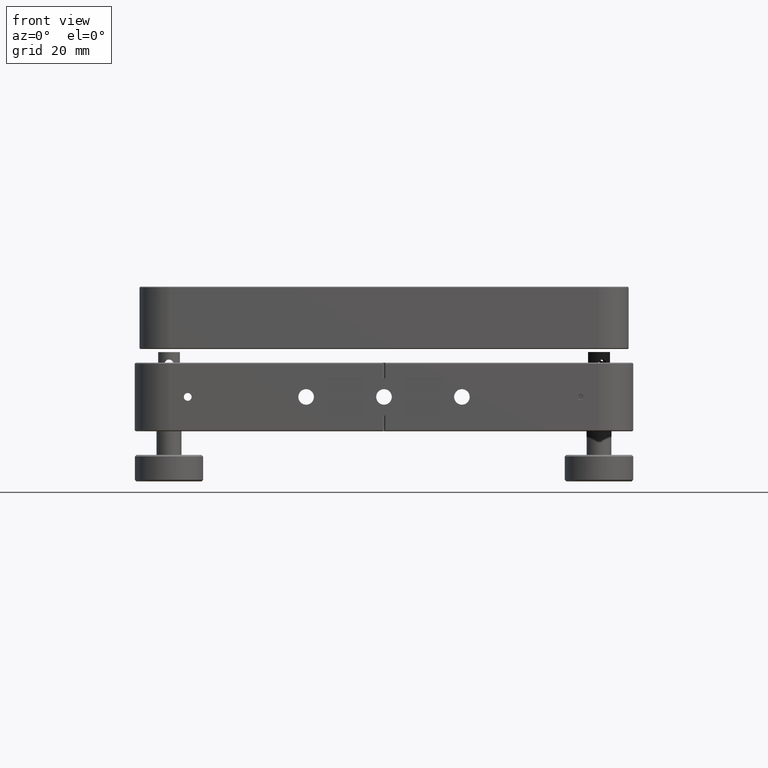
[diagram: clean part render]
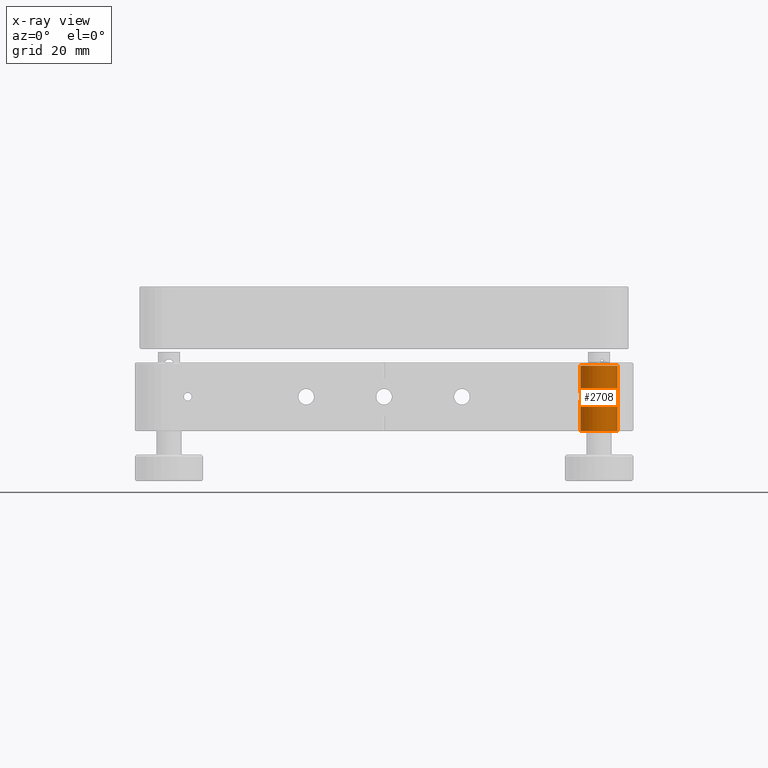
[diagram: x-ray — body ghosted, one internal face saturated and labeled with its STEP entity id]
A machine part, front view, then the same camera in x-ray: the body is ghosted and one INTERNAL B-rep face — a face not visible from any outside direction — is saturated and labeled: STEP entity #2708.
In plain terms, the highlighted cylindrical surface (edge-blend (fillet) strip) has radius 6 mm, axis along (-0, -0, 1).
Its self-contained STEP definition (entity closure, byte-faithful):
#301 = ORIENTED_EDGE ( 'NONE', *, *, #6576, .T. ) ;
#321 = CIRCLE ( 'NONE', #3181, 6.000000000000005329 ) ;
#382 = CARTESIAN_POINT ( 'NONE',  ( 69.00000000000002842, -69.00000000000002842, -11.00000000000000000 ) ) ;
#394 = AXIS2_PLACEMENT_3D ( 'NONE', #382, #16751, #4492 ) ;
#459 = CYLINDRICAL_SURFACE ( 'NONE', #1382, 6.000000000000005329 ) ;
#725 = LINE ( 'NONE', #7616, #9263 ) ;
#1002 = VERTEX_POINT ( 'NONE', #10315 ) ;
#1071 = CARTESIAN_POINT ( 'NONE',  ( 63.00000000000002842, -69.00000000000002842, 9.999999999999998224 ) ) ;
#1157 = CARTESIAN_POINT ( 'NONE',  ( 63.13843892088689813, -70.29482699041338378, -1.242790363445703372 ) ) ;
#1248 = CARTESIAN_POINT ( 'NONE',  ( 63.18133658306691558, -70.47580350192779974, -1.237886824584640832 ) ) ;
#1382 = AXIS2_PLACEMENT_3D ( 'NONE', #3142, #12365, #12542 ) ;
#1414 = CARTESIAN_POINT ( 'NONE',  ( 64.24968844366240717, -72.66531586181879732, 0.09801379278043384491 ) ) ;
#1463 = CARTESIAN_POINT ( 'NONE',  ( 69.00000000000002842, -69.00000000000002842, 9.999999999999998224 ) ) ;
#1501 = EDGE_CURVE ( 'NONE', #13448, #17362, #725, .T. ) ;
#1890 = VERTEX_POINT ( 'NONE', #14366 ) ;
#2052 = DIRECTION ( 'NONE',  ( -0.000000000000000000, -0.000000000000000000, 1.000000000000000000 ) ) ;
#2081 = ORIENTED_EDGE ( 'NONE', *, *, #17210, .F. ) ;
#2420 = LINE ( 'NONE', #6459, #16913 ) ;
#2499 = CARTESIAN_POINT ( 'NONE',  ( 64.25029838675787630, -72.66610622245735840, -0.08989913163700379017 ) ) ;
#2676 = CARTESIAN_POINT ( 'NONE',  ( 63.00000000000002842, -69.00000000000004263, -1.249999999999994671 ) ) ;
#2708 = ADVANCED_FACE ( 'NONE', ( #9859 ), #459, .F. ) ;
#2763 = CARTESIAN_POINT ( 'NONE',  ( 63.55702805116139587, -71.53122345339714627, -1.123044878255709644 ) ) ;
#3142 = CARTESIAN_POINT ( 'NONE',  ( 69.00000000000002842, -69.00000000000002842, -11.00000000000000000 ) ) ;
#3181 = AXIS2_PLACEMENT_3D ( 'NONE', #1463, #6938, #16319 ) ;
#3586 = B_SPLINE_CURVE_WITH_KNOTS ( 'NONE', 3,
 ( #2676, #5545, #8151, #1157, #1248, #17438, #6722, #9477, #2763, #13336, #14845, #5190, #9572, #15021, #14930, #3932, #8227, #13670, #2499, #1414, #10918, #17533, #16100, #3853, #10658, #12253, #13592, #9387, #7971, #6887, #16270, #4016, #12338, #9304, #14761, #5286 ),
 .UNSPECIFIED., .F., .F.,
 ( 4, 2, 2, 2, 2, 2, 2, 2, 2, 2, 2, 2, 2, 2, 2, 2, 2, 4 ),
 ( 1.387948177032400748E-17, 0.001113954897904552693, 0.001670932346856797814, 0.002227909795809042935, 0.002784887244761288273, 0.003341864693713533611, 0.003620353418189664954, 0.003898842142665796730, 0.004177330867141928507, 0.004455819591618060717, 0.004734308316094192060, 0.005012797040570323402, 0.005291285765046455612, 0.005569774489522586955, 0.006126751938474868722, 0.006683729387427152224, 0.007797684285331702748, 0.008911639183236253273 ),
 .UNSPECIFIED. ) ;
#3722 = ORIENTED_EDGE ( 'NONE', *, *, #17330, .T. ) ;
#3853 = CARTESIAN_POINT ( 'NONE',  ( 64.09997800398986101, -72.46311795141356527, 0.5992766933433351095 ) ) ;
#3932 = CARTESIAN_POINT ( 'NONE',  ( 64.17094071428422808, -72.56139281333047109, -0.4450038959629270541 ) ) ;
#4016 = CARTESIAN_POINT ( 'NONE',  ( 63.27607548237955370, -70.83716646185148136, 1.227541699854906243 ) ) ;
#4492 = DIRECTION ( 'NONE',  ( 1.000000000000000000, 0.000000000000000000, 0.000000000000000000 ) ) ;
#5190 = CARTESIAN_POINT ( 'NONE',  ( 63.93834132448147756, -72.22282159784725764, -0.8282246022389999629 ) ) ;
#5286 = CARTESIAN_POINT ( 'NONE',  ( 63.00000000000002842, -69.00000000000002842, 1.249999999999994005 ) ) ;
#5545 = CARTESIAN_POINT ( 'NONE',  ( 63.00000000000001421, -69.37668656156039049, -1.249999999999994227 ) ) ;
#5840 = EDGE_LOOP ( 'NONE', ( #11825, #301, #3722, #12838, #14024, #2081 ) ) ;
#6048 = EDGE_CURVE ( 'NONE', #6253, #17362, #321, .T. ) ;
#6253 = VERTEX_POINT ( 'NONE', #14444 ) ;
#6459 = CARTESIAN_POINT ( 'NONE',  ( 75.00000000000004263, -69.00000000000002842, -11.00000000000000000 ) ) ;
#6576 = EDGE_CURVE ( 'NONE', #1890, #11663, #11993, .T. ) ;
#6722 = CARTESIAN_POINT ( 'NONE',  ( 63.34481341808495358, -71.01338237752986515, -1.203661452424305001 ) ) ;
#6887 = CARTESIAN_POINT ( 'NONE',  ( 63.55501766432815458, -71.52680410238238551, 1.123955487168872169 ) ) ;
#6938 = DIRECTION ( 'NONE',  ( -0.000000000000000000, -0.000000000000000000, -1.000000000000000000 ) ) ;
#7205 = VECTOR ( 'NONE', #12173, 1000.000000000000000 ) ;
#7616 = CARTESIAN_POINT ( 'NONE',  ( 63.00000000000002842, -69.00000000000002842, -11.00000000000000000 ) ) ;
#7971 = CARTESIAN_POINT ( 'NONE',  ( 63.71673344335479783, -71.84950278101797494, 1.028403479199701431 ) ) ;
#8151 = CARTESIAN_POINT ( 'NONE',  ( 63.03516917574226852, -69.74745843703317405, -1.251413607979768416 ) ) ;
#8227 = CARTESIAN_POINT ( 'NONE',  ( 64.19995544426936362, -72.60008940092791363, -0.3616466798126025672 ) ) ;
#8406 = CIRCLE ( 'NONE', #394, 6.000000000000005329 ) ;
#9263 = VECTOR ( 'NONE', #2052, 1000.000000000000000 ) ;
#9304 = CARTESIAN_POINT ( 'NONE',  ( 63.03506567787790971, -69.74735409764267047, 1.251436005054977318 ) ) ;
#9387 = CARTESIAN_POINT ( 'NONE',  ( 63.80450093346957630, -72.00570169348547722, 0.9646985452863768851 ) ) ;
#9477 = CARTESIAN_POINT ( 'NONE',  ( 63.48090494314183019, -71.36102385159141193, -1.156039627783314261 ) ) ;
#9572 = CARTESIAN_POINT ( 'NONE',  ( 63.98151232234710051, -72.28941037990463769, -0.7773441658092772322 ) ) ;
#9859 = FACE_OUTER_BOUND ( 'NONE', #5840, .T. ) ;
#10145 = CARTESIAN_POINT ( 'NONE',  ( 63.00000000000002842, -69.00000000000004263, -1.249999999999994671 ) ) ;
#10315 = CARTESIAN_POINT ( 'NONE',  ( 75.00000000000004263, -69.00000000000002842, -11.00000000000000000 ) ) ;
#10658 = CARTESIAN_POINT ( 'NONE',  ( 64.06044203493347311, -72.40679597129785350, 0.6656232057040227801 ) ) ;
#10918 = CARTESIAN_POINT ( 'NONE',  ( 64.23831486880146713, -72.65068295092711992, 0.1929796114304661581 ) ) ;
#11663 = VERTEX_POINT ( 'NONE', #10145 ) ;
#11825 = ORIENTED_EDGE ( 'NONE', *, *, #16742, .F. ) ;
#11902 = CARTESIAN_POINT ( 'NONE',  ( 63.00000000000002842, -69.00000000000002842, 1.249999999999994005 ) ) ;
#11993 = LINE ( 'NONE', #12079, #7205 ) ;
#12079 = CARTESIAN_POINT ( 'NONE',  ( 63.00000000000002842, -69.00000000000002842, -11.00000000000000000 ) ) ;
#12173 = DIRECTION ( 'NONE',  ( -0.000000000000000000, -0.000000000000000000, 1.000000000000000000 ) ) ;
#12253 = CARTESIAN_POINT ( 'NONE',  ( 63.97780713787694395, -72.28375859891430366, 0.7819749117090986079 ) ) ;
#12338 = CARTESIAN_POINT ( 'NONE',  ( 63.17345832695825436, -70.47999721175465027, 1.239852364324820932 ) ) ;
#12365 = DIRECTION ( 'NONE',  ( -0.000000000000000000, -0.000000000000000000, 1.000000000000000000 ) ) ;
#12542 = DIRECTION ( 'NONE',  ( 1.000000000000000000, 0.000000000000000000, 0.000000000000000000 ) ) ;
#12838 = ORIENTED_EDGE ( 'NONE', *, *, #1501, .T. ) ;
#13336 = CARTESIAN_POINT ( 'NONE',  ( 63.72022422600584690, -71.85604684541694098, -1.026054147027023244 ) ) ;
#13448 = VERTEX_POINT ( 'NONE', #11902 ) ;
#13592 = CARTESIAN_POINT ( 'NONE',  ( 63.93484836030270912, -72.21731288065161891, 0.8321056435616549507 ) ) ;
#13670 = CARTESIAN_POINT ( 'NONE',  ( 64.23952023704350722, -72.65224641257326255, -0.1851242048214310210 ) ) ;
#14024 = ORIENTED_EDGE ( 'NONE', *, *, #6048, .F. ) ;
#14366 = CARTESIAN_POINT ( 'NONE',  ( 63.00000000000002842, -69.00000000000002842, -11.00000000000000000 ) ) ;
#14413 = DIRECTION ( 'NONE',  ( -0.000000000000000000, -0.000000000000000000, 1.000000000000000000 ) ) ;
#14444 = CARTESIAN_POINT ( 'NONE',  ( 75.00000000000004263, -69.00000000000002842, 9.999999999999998224 ) ) ;
#14761 = CARTESIAN_POINT ( 'NONE',  ( 63.00000000000002842, -69.37155860696975651, 1.249999999999994227 ) ) ;
#14845 = CARTESIAN_POINT ( 'NONE',  ( 63.80679783533972937, -72.00973780801238888, -0.9629844156710600789 ) ) ;
#14930 = CARTESIAN_POINT ( 'NONE',  ( 64.10331199631930588, -72.46782048993446779, -0.5931553443816580673 ) ) ;
#15021 = CARTESIAN_POINT ( 'NONE',  ( 64.06388218675283497, -72.41177082347597604, -0.6601402000688529892 ) ) ;
#16100 = CARTESIAN_POINT ( 'NONE',  ( 64.16822335308471281, -72.55771498874068470, 0.4520380091912101772 ) ) ;
#16270 = CARTESIAN_POINT ( 'NONE',  ( 63.47924734411245140, -71.35709847810871054, 1.156704827246186618 ) ) ;
#16319 = DIRECTION ( 'NONE',  ( 1.000000000000000000, 0.000000000000000000, 0.000000000000000000 ) ) ;
#16742 = EDGE_CURVE ( 'NONE', #1890, #1002, #8406, .T. ) ;
#16751 = DIRECTION ( 'NONE',  ( 0.000000000000000000, 0.000000000000000000, 1.000000000000000000 ) ) ;
#16913 = VECTOR ( 'NONE', #14413, 1000.000000000000000 ) ;
#17210 = EDGE_CURVE ( 'NONE', #1002, #6253, #2420, .T. ) ;
#17330 = EDGE_CURVE ( 'NONE', #11663, #13448, #3586, .T. ) ;
#17362 = VERTEX_POINT ( 'NONE', #1071 ) ;
#17438 = CARTESIAN_POINT ( 'NONE',  ( 63.28432107509473781, -70.83462649148307833, -1.218362948014922731 ) ) ;
#17533 = CARTESIAN_POINT ( 'NONE',  ( 64.19768547221792687, -72.59706915045016729, 0.3690722888009860814 ) ) ;